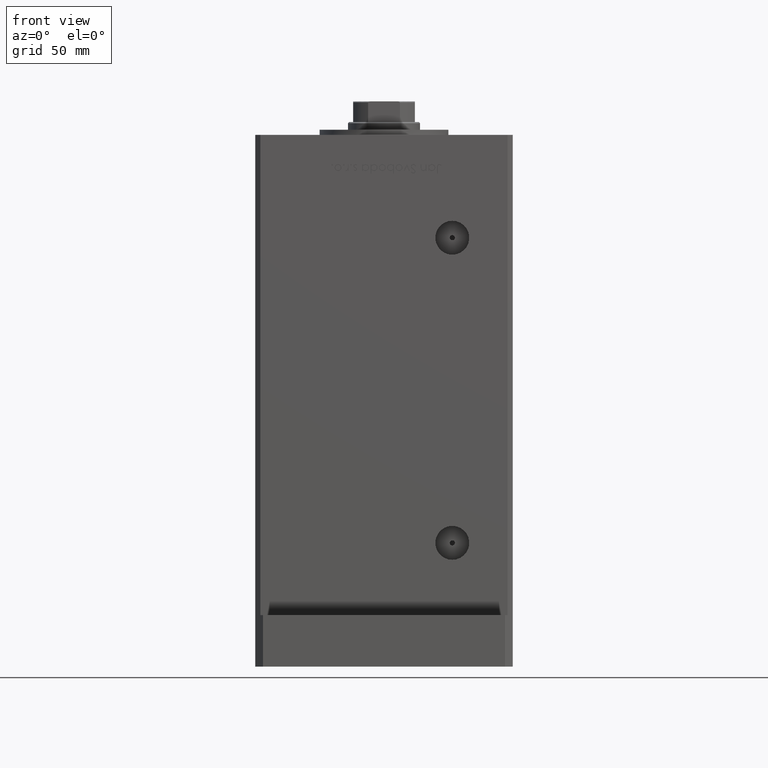
[diagram: clean part render]
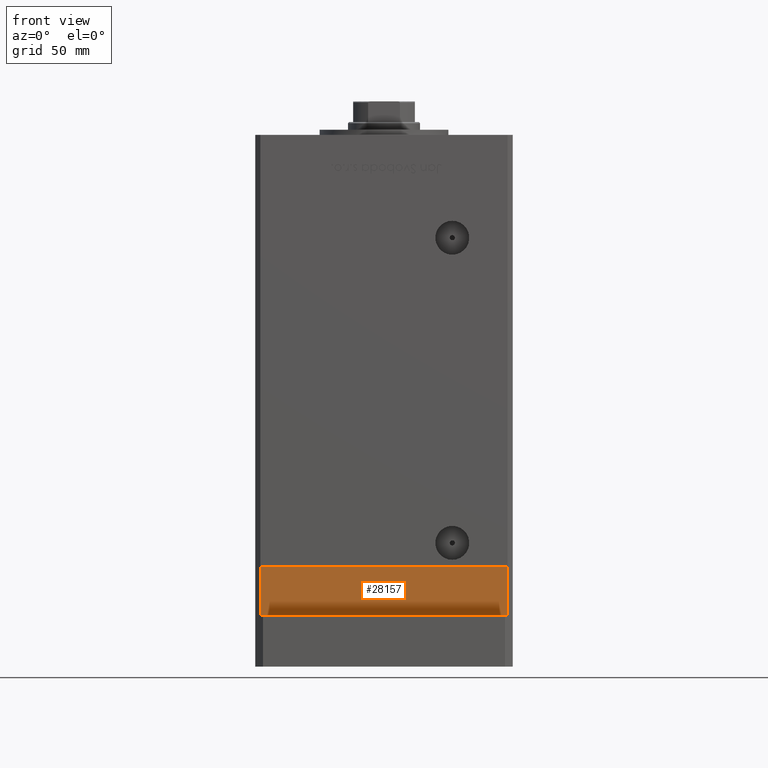
[diagram: same view with one face highlighted and labeled with its STEP entity id]
A machine part, front view. The second image highlights one B-rep face of the part: STEP entity #28157.
In plain terms, the highlighted planar face has unit normal (0, -1, -0).
Its self-contained STEP definition (entity closure, byte-faithful):
#82 = VECTOR ( 'NONE', #33793, 1000.000000000000000 ) ;
#1547 = DIRECTION ( 'NONE',  ( 0.000000000000000000, -0.000000000000000000, -1.000000000000000000 ) ) ;
#3478 = CARTESIAN_POINT ( 'NONE',  ( -47.99999999999999289, -43.50000000000001421, -19.00000000000000000 ) ) ;
#3822 = EDGE_CURVE ( 'NONE', #9674, #32747, #45011, .T. ) ;
#4958 = LINE ( 'NONE', #34545, #26447 ) ;
#5231 = EDGE_CURVE ( 'NONE', #48442, #20985, #50641, .T. ) ;
#8873 = DIRECTION ( 'NONE',  ( 0.000000000000000000, -1.000000000000000000, 0.000000000000000000 ) ) ;
#9440 = EDGE_LOOP ( 'NONE', ( #15423, #17379, #41821, #19856 ) ) ;
#9674 = VERTEX_POINT ( 'NONE', #51633 ) ;
#11625 = DIRECTION ( 'NONE',  ( 0.000000000000000000, 0.000000000000000000, 1.000000000000000000 ) ) ;
#12135 = LINE ( 'NONE', #36320, #53162 ) ;
#15423 = ORIENTED_EDGE ( 'NONE', *, *, #36564, .F. ) ;
#17083 = AXIS2_PLACEMENT_3D ( 'NONE', #42270, #8873, #1547 ) ;
#17243 = CARTESIAN_POINT ( 'NONE',  ( 47.99999999999999289, -43.50000000000001421, -19.00000000000000000 ) ) ;
#17379 = ORIENTED_EDGE ( 'NONE', *, *, #3822, .F. ) ;
#19117 = VECTOR ( 'NONE', #11625, 1000.000000000000000 ) ;
#19856 = ORIENTED_EDGE ( 'NONE', *, *, #5231, .T. ) ;
#19893 = CARTESIAN_POINT ( 'NONE',  ( -47.99999999999999289, -43.50000000000001421, 0.000000000000000000 ) ) ;
#20985 = VERTEX_POINT ( 'NONE', #45575 ) ;
#22034 = EDGE_CURVE ( 'NONE', #9674, #48442, #4958, .T. ) ;
#25451 = FACE_OUTER_BOUND ( 'NONE', #9440, .T. ) ;
#26447 = VECTOR ( 'NONE', #38621, 1000.000000000000000 ) ;
#28157 = ADVANCED_FACE ( 'NONE', ( #25451 ), #46888, .T. ) ;
#32747 = VERTEX_POINT ( 'NONE', #19893 ) ;
#33793 = DIRECTION ( 'NONE',  ( 0.000000000000000000, 0.000000000000000000, 1.000000000000000000 ) ) ;
#34545 = CARTESIAN_POINT ( 'NONE',  ( -47.99999999999999289, -43.50000000000001421, -19.00000000000000000 ) ) ;
#36320 = CARTESIAN_POINT ( 'NONE',  ( -47.99999999999999289, -43.50000000000001421, 0.000000000000000000 ) ) ;
#36564 = EDGE_CURVE ( 'NONE', #32747, #20985, #12135, .T. ) ;
#38621 = DIRECTION ( 'NONE',  ( 1.000000000000000000, 0.000000000000000000, 0.000000000000000000 ) ) ;
#41821 = ORIENTED_EDGE ( 'NONE', *, *, #22034, .T. ) ;
#42270 = CARTESIAN_POINT ( 'NONE',  ( -47.99999999999999289, -43.50000000000001421, -19.00000000000000000 ) ) ;
#45011 = LINE ( 'NONE', #3478, #19117 ) ;
#45575 = CARTESIAN_POINT ( 'NONE',  ( 47.99999999999999289, -43.50000000000001421, 0.000000000000000000 ) ) ;
#46759 = CARTESIAN_POINT ( 'NONE',  ( 47.99999999999999289, -43.50000000000001421, -19.00000000000000000 ) ) ;
#46888 = PLANE ( 'NONE',  #17083 ) ;
#48442 = VERTEX_POINT ( 'NONE', #46759 ) ;
#50641 = LINE ( 'NONE', #17243, #82 ) ;
#51633 = CARTESIAN_POINT ( 'NONE',  ( -47.99999999999999289, -43.50000000000001421, -19.00000000000000000 ) ) ;
#52885 = DIRECTION ( 'NONE',  ( 1.000000000000000000, 0.000000000000000000, 0.000000000000000000 ) ) ;
#53162 = VECTOR ( 'NONE', #52885, 1000.000000000000000 ) ;